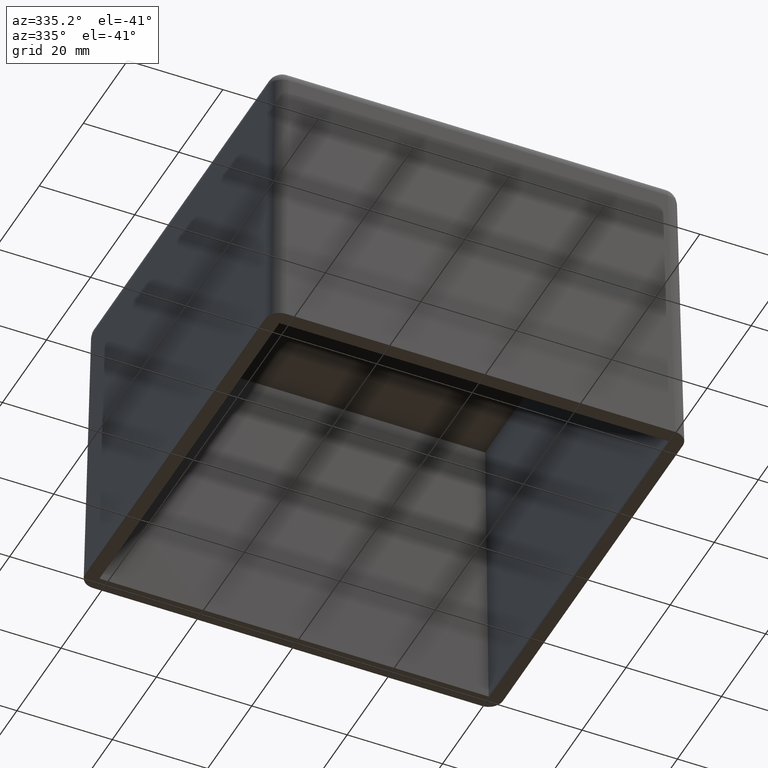
[diagram: clean part render]
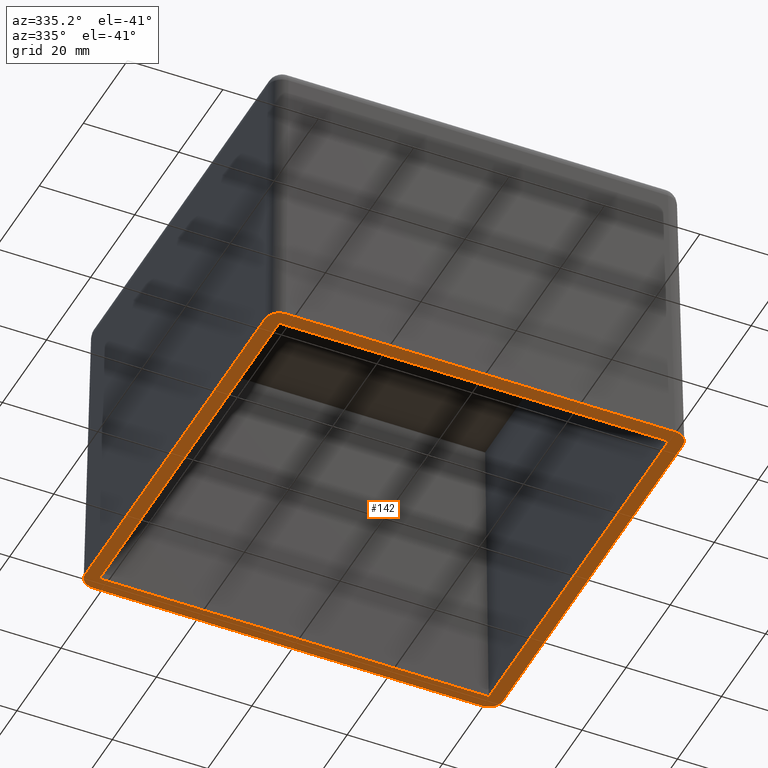
[diagram: same view with one face highlighted and labeled with its STEP entity id]
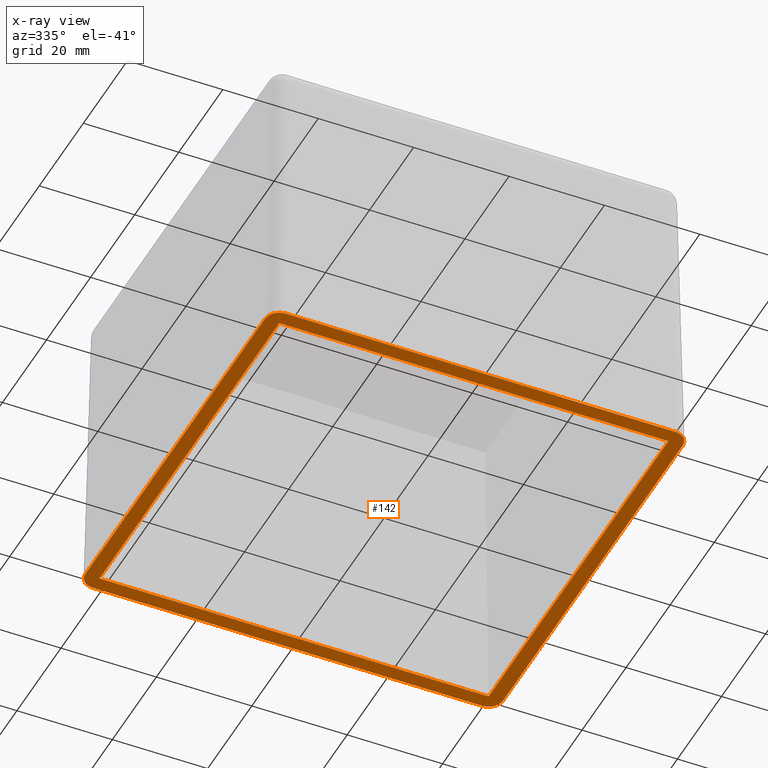
[diagram: x-ray of the same camera — body ghosted, the highlighted face saturated]
A machine part, auxiliary view. The second image highlights one B-rep face of the part: STEP entity #142.
The next image is the same camera in x-ray: the body ghosted, the highlighted face saturated — about 0% of this face is hidden behind the body in this view.
In plain terms, the highlighted planar face has unit normal (0, 0, 1).
Its self-contained STEP definition (entity closure, byte-faithful):
#142 = ADVANCED_FACE( '', ( #299, #300 ), #301, .F. );
#299 = FACE_BOUND( '', #477, .T. );
#300 = FACE_OUTER_BOUND( '', #478, .T. );
#301 = PLANE( '', #479 );
#477 = EDGE_LOOP( '', ( #1075, #1076, #1077, #1078 ) );
#478 = EDGE_LOOP( '', ( #1079, #1080, #1081, #1082, #1083, #1084, #1085, #1086 ) );
#479 = AXIS2_PLACEMENT_3D( '', #1087, #1088, #1089 );
#1075 = ORIENTED_EDGE( '', *, *, #1335, .T. );
#1076 = ORIENTED_EDGE( '', *, *, #1342, .T. );
#1077 = ORIENTED_EDGE( '', *, *, #1340, .T. );
#1078 = ORIENTED_EDGE( '', *, *, #1338, .T. );
#1079 = ORIENTED_EDGE( '', *, *, #1219, .F. );
#1080 = ORIENTED_EDGE( '', *, *, #1330, .T. );
#1081 = ORIENTED_EDGE( '', *, *, #1343, .F. );
#1082 = ORIENTED_EDGE( '', *, *, #1328, .T. );
#1083 = ORIENTED_EDGE( '', *, *, #1344, .F. );
#1084 = ORIENTED_EDGE( '', *, *, #1325, .T. );
#1085 = ORIENTED_EDGE( '', *, *, #1345, .F. );
#1086 = ORIENTED_EDGE( '', *, *, #1322, .T. );
#1087 = CARTESIAN_POINT( '', ( -43.8000000000000, -43.8000000000000, 0.000000000000000 ) );
#1088 = DIRECTION( '', ( 0.000000000000000, 0.000000000000000, 1.00000000000000 ) );
#1089 = DIRECTION( '', ( 0.000000000000000, -1.00000000000000, 0.000000000000000 ) );
#1219 = EDGE_CURVE( '', #1434, #1429, #1436, .F. );
#1322 = EDGE_CURVE( '', #1591, #1429, #1593, .F. );
#1325 = EDGE_CURVE( '', #1594, #1596, #1598, .F. );
#1328 = EDGE_CURVE( '', #1599, #1601, #1603, .F. );
#1330 = EDGE_CURVE( '', #1434, #1604, #1606, .F. );
#1335 = EDGE_CURVE( '', #1615, #1616, #1617, .F. );
#1338 = EDGE_CURVE( '', #1620, #1615, #1621, .F. );
#1340 = EDGE_CURVE( '', #1623, #1620, #1624, .F. );
#1342 = EDGE_CURVE( '', #1616, #1623, #1626, .F. );
#1343 = EDGE_CURVE( '', #1599, #1604, #1627, .F. );
#1344 = EDGE_CURVE( '', #1594, #1601, #1628, .F. );
#1345 = EDGE_CURVE( '', #1591, #1596, #1629, .F. );
#1429 = VERTEX_POINT( '', #1802 );
#1434 = VERTEX_POINT( '', #1809 );
#1436 = LINE( '', #1812, #1813 );
#1591 = VERTEX_POINT( '', #2156 );
#1593 = ELLIPSE( '', #2159, 3.00091389867315, 3.00000000000000 );
#1594 = VERTEX_POINT( '', #2160 );
#1596 = VERTEX_POINT( '', #2163 );
#1598 = ELLIPSE( '', #2166, 3.00091389867315, 3.00000000000000 );
#1599 = VERTEX_POINT( '', #2167 );
#1601 = VERTEX_POINT( '', #2170 );
#1603 = ELLIPSE( '', #2173, 3.00091389867315, 3.00000000000000 );
#1604 = VERTEX_POINT( '', #2174 );
#1606 = ELLIPSE( '', #2177, 3.00091389867315, 3.00000000000000 );
#1615 = VERTEX_POINT( '', #2190 );
#1616 = VERTEX_POINT( '', #2191 );
#1617 = LINE( '', #2192, #2193 );
#1620 = VERTEX_POINT( '', #2198 );
#1621 = LINE( '', #2199, #2200 );
#1623 = VERTEX_POINT( '', #2203 );
#1624 = LINE( '', #2204, #2205 );
#1626 = LINE( '', #2208, #2209 );
#1627 = LINE( '', #2210, #2211 );
#1628 = LINE( '', #2212, #2213 );
#1629 = LINE( '', #2214, #2215 );
#1802 = CARTESIAN_POINT( '', ( -43.8000000000000, -40.8004569145308, 0.000000000000000 ) );
#1809 = CARTESIAN_POINT( '', ( -43.8000000000000, 40.8004569145308, 0.000000000000000 ) );
#1812 = CARTESIAN_POINT( '', ( -43.8000000000000, -43.8000000000000, 0.000000000000000 ) );
#1813 = VECTOR( '', #2309, 1000.00000000000 );
#2156 = CARTESIAN_POINT( '', ( -40.8004569145308, -43.8000000000000, 0.000000000000000 ) );
#2159 = AXIS2_PLACEMENT_3D( '', #2421, #2422, #2423 );
#2160 = CARTESIAN_POINT( '', ( 43.8000000000000, -40.8004569145308, 0.000000000000000 ) );
#2163 = CARTESIAN_POINT( '', ( 40.8004569145308, -43.8000000000000, 0.000000000000000 ) );
#2166 = AXIS2_PLACEMENT_3D( '', #2426, #2427, #2428 );
#2167 = CARTESIAN_POINT( '', ( 40.8004569145308, 43.8000000000000, 0.000000000000000 ) );
#2170 = CARTESIAN_POINT( '', ( 43.8000000000000, 40.8004569145308, 0.000000000000000 ) );
#2173 = AXIS2_PLACEMENT_3D( '', #2431, #2432, #2433 );
#2174 = CARTESIAN_POINT( '', ( -40.8004569145308, 43.8000000000000, 0.000000000000000 ) );
#2177 = AXIS2_PLACEMENT_3D( '', #2435, #2436, #2437 );
#2190 = CARTESIAN_POINT( '', ( 40.8000000000000, 40.8000000000000, 0.000000000000000 ) );
#2191 = CARTESIAN_POINT( '', ( -40.8000000000000, 40.8000000000000, 0.000000000000000 ) );
#2192 = CARTESIAN_POINT( '', ( -40.8000000000000, 40.8000000000000, 0.000000000000000 ) );
#2193 = VECTOR( '', #2442, 1000.00000000000 );
#2198 = CARTESIAN_POINT( '', ( 40.8000000000000, -40.8000000000000, 0.000000000000000 ) );
#2199 = CARTESIAN_POINT( '', ( 40.8000000000000, -40.8000000000000, 0.000000000000000 ) );
#2200 = VECTOR( '', #2445, 1000.00000000000 );
#2203 = CARTESIAN_POINT( '', ( -40.8000000000000, -40.8000000000000, 0.000000000000000 ) );
#2204 = CARTESIAN_POINT( '', ( -40.8000000000000, -40.8000000000000, 0.000000000000000 ) );
#2205 = VECTOR( '', #2447, 1000.00000000000 );
#2208 = CARTESIAN_POINT( '', ( -40.8000000000000, -40.8000000000000, 0.000000000000000 ) );
#2209 = VECTOR( '', #2449, 1000.00000000000 );
#2210 = CARTESIAN_POINT( '', ( -43.8000000000000, 43.8000000000000, 0.000000000000000 ) );
#2211 = VECTOR( '', #2450, 1000.00000000000 );
#2212 = CARTESIAN_POINT( '', ( 43.8000000000000, -43.8000000000000, 0.000000000000000 ) );
#2213 = VECTOR( '', #2451, 1000.00000000000 );
#2214 = CARTESIAN_POINT( '', ( -43.8000000000000, -43.8000000000000, 0.000000000000000 ) );
#2215 = VECTOR( '', #2452, 1000.00000000000 );
#2309 = DIRECTION( '', ( 0.000000000000000, 1.00000000000000, 0.000000000000000 ) );
#2421 = CARTESIAN_POINT( '', ( -40.7995430158683, -40.7995430158683, 0.000000000000000 ) );
#2422 = DIRECTION( '', ( 0.000000000000000, 0.000000000000000, 1.00000000000000 ) );
#2423 = DIRECTION( '', ( -0.707106781186548, -0.707106781186548, 0.000000000000000 ) );
#2426 = CARTESIAN_POINT( '', ( 40.7995430158683, -40.7995430158683, 0.000000000000000 ) );
#2427 = DIRECTION( '', ( 0.000000000000000, 0.000000000000000, 1.00000000000000 ) );
#2428 = DIRECTION( '', ( 0.707106781186548, -0.707106781186548, 0.000000000000000 ) );
#2431 = CARTESIAN_POINT( '', ( 40.7995430158683, 40.7995430158683, 0.000000000000000 ) );
#2432 = DIRECTION( '', ( 0.000000000000000, 0.000000000000000, 1.00000000000000 ) );
#2433 = DIRECTION( '', ( 0.707106781186548, 0.707106781186548, 0.000000000000000 ) );
#2435 = CARTESIAN_POINT( '', ( -40.7995430158683, 40.7995430158683, 0.000000000000000 ) );
#2436 = DIRECTION( '', ( 0.000000000000000, 0.000000000000000, 1.00000000000000 ) );
#2437 = DIRECTION( '', ( -0.707106781186548, 0.707106781186548, 0.000000000000000 ) );
#2442 = DIRECTION( '', ( 1.00000000000000, 0.000000000000000, 0.000000000000000 ) );
#2445 = DIRECTION( '', ( 0.000000000000000, -1.00000000000000, 0.000000000000000 ) );
#2447 = DIRECTION( '', ( -1.00000000000000, 0.000000000000000, 0.000000000000000 ) );
#2449 = DIRECTION( '', ( 0.000000000000000, 1.00000000000000, 0.000000000000000 ) );
#2450 = DIRECTION( '', ( 1.00000000000000, 0.000000000000000, 0.000000000000000 ) );
#2451 = DIRECTION( '', ( 0.000000000000000, -1.00000000000000, 0.000000000000000 ) );
#2452 = DIRECTION( '', ( -1.00000000000000, 0.000000000000000, 0.000000000000000 ) );